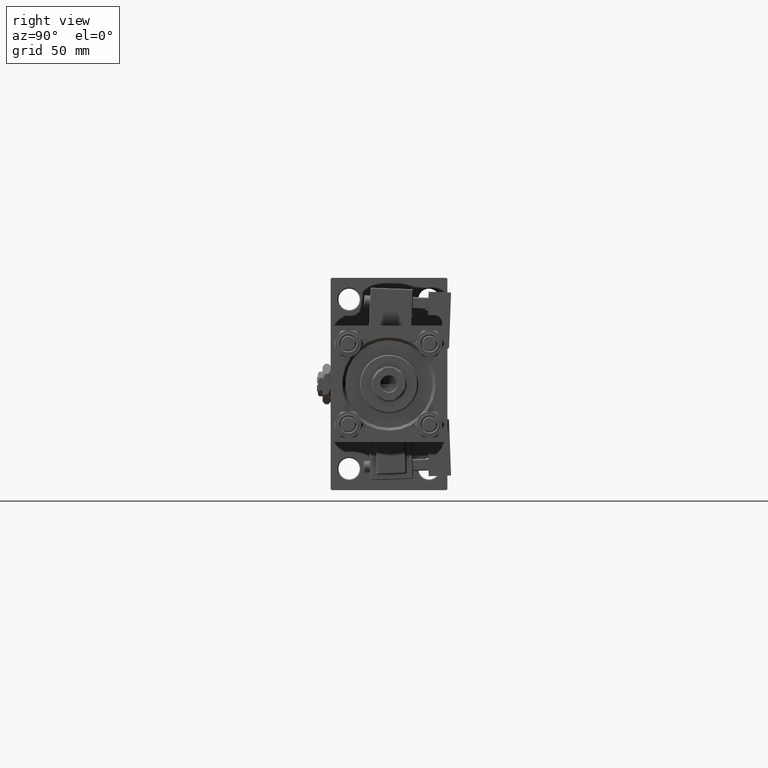
[diagram: clean part render]
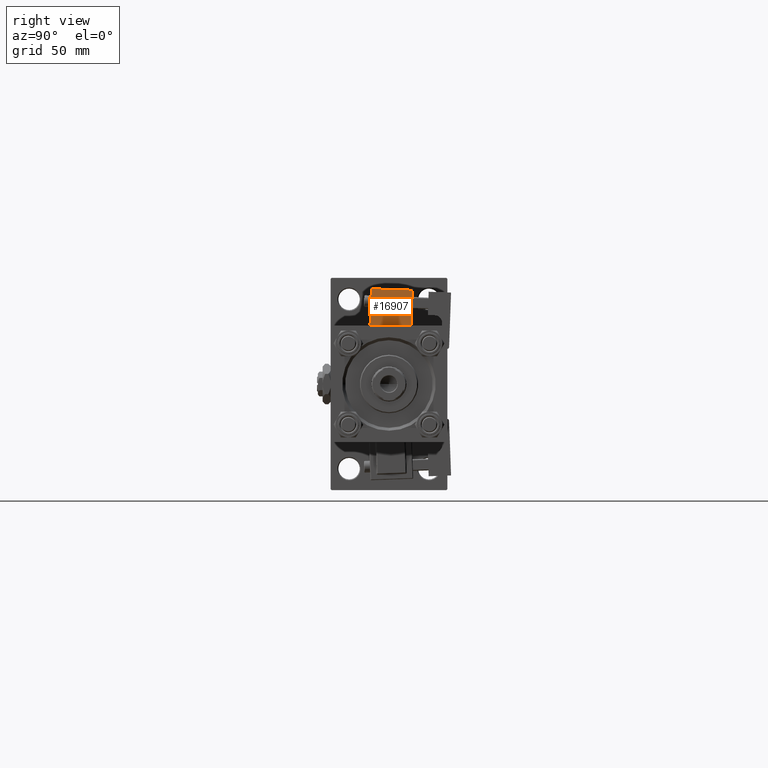
[diagram: same view with one face highlighted and labeled with its STEP entity id]
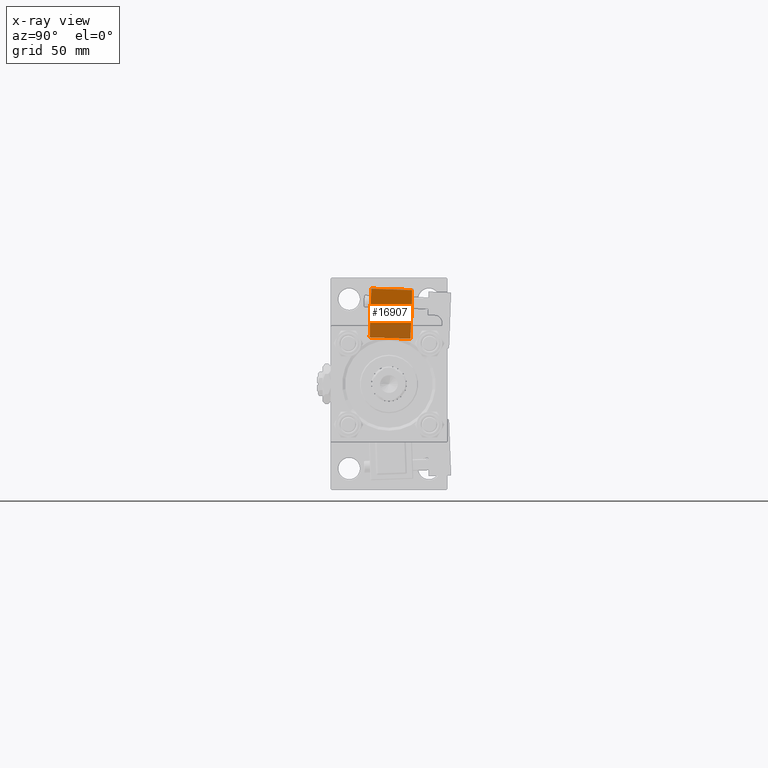
[diagram: x-ray of the same camera — body ghosted, the highlighted face saturated]
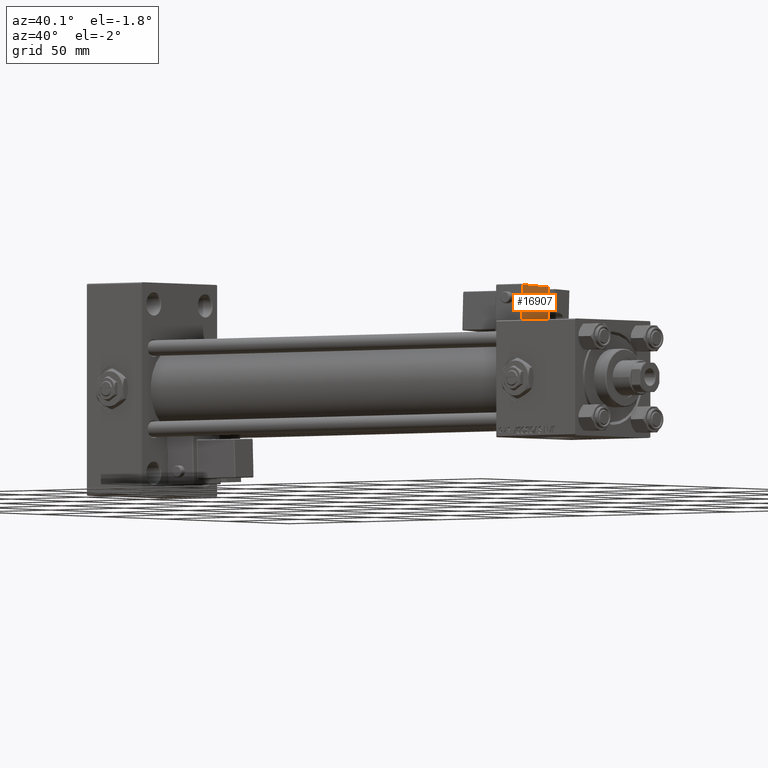
[diagram: same view with one face highlighted and labeled with its STEP entity id]
A machine part, right view. The second image highlights one B-rep face of the part: STEP entity #16907.
The next image is the same camera in x-ray: the body ghosted, the highlighted face saturated — about 26% of this face is hidden behind the body in this view.
A second angle (auxiliary view) of the same face is appended — the face is thin or edge-on in the first view.
In plain terms, the highlighted planar face has unit normal (-1, 0, 0).
Its self-contained STEP definition (entity closure, byte-faithful):
#5078 = EDGE_CURVE ( 'NONE', #16113, #12175, #16548, .T. ) ;
#5530 = EDGE_CURVE ( 'NONE', #12175, #8808, #18093, .T. ) ;
#8808 = VERTEX_POINT ( 'NONE', #38879 ) ;
#11890 = CARTESIAN_POINT ( 'NONE',  ( -8.750000000000003553, -14.24999999999999822, -1.000000000000000888 ) ) ;
#12175 = VERTEX_POINT ( 'NONE', #51238 ) ;
#13982 = CARTESIAN_POINT ( 'NONE',  ( -8.750000000000003553, -35.75000000000000000, -0.5000000000000004441 ) ) ;
#14751 = VERTEX_POINT ( 'NONE', #30065 ) ;
#16113 = VERTEX_POINT ( 'NONE', #25900 ) ;
#16548 = LINE ( 'NONE', #11890, #44857 ) ;
#16907 = ADVANCED_FACE ( 'NONE', ( #38532 ), #38794, .F. ) ;
#17034 = ORIENTED_EDGE ( 'NONE', *, *, #37834, .T. ) ;
#18093 = LINE ( 'NONE', #13982, #20402 ) ;
#20062 = ORIENTED_EDGE ( 'NONE', *, *, #5530, .T. ) ;
#20402 = VECTOR ( 'NONE', #30671, 1000.000000000000000 ) ;
#21513 = VECTOR ( 'NONE', #36344, 1000.000000000000000 ) ;
#22440 = ORIENTED_EDGE ( 'NONE', *, *, #23762, .T. ) ;
#23762 = EDGE_CURVE ( 'NONE', #14751, #16113, #31679, .T. ) ;
#25900 = CARTESIAN_POINT ( 'NONE',  ( -8.750000000000000000, -14.24999999999999822, 24.50000000000000000 ) ) ;
#27778 = DIRECTION ( 'NONE',  ( -1.334402673828313093E-16, 0.000000000000000000, -1.000000000000000000 ) ) ;
#30065 = CARTESIAN_POINT ( 'NONE',  ( -8.750000000000000000, -35.25000000000000000, 24.50000000000000000 ) ) ;
#30671 = DIRECTION ( 'NONE',  ( -0.000000000000000000, -1.000000000000000000, -0.000000000000000000 ) ) ;
#31679 = LINE ( 'NONE', #48434, #21513 ) ;
#32305 = ORIENTED_EDGE ( 'NONE', *, *, #5078, .T. ) ;
#32960 = DIRECTION ( 'NONE',  ( -1.334402673828313093E-16, 0.000000000000000000, -1.000000000000000000 ) ) ;
#35698 = AXIS2_PLACEMENT_3D ( 'NONE', #52238, #39881, #27778 ) ;
#36344 = DIRECTION ( 'NONE',  ( 0.000000000000000000, 1.000000000000000000, 0.000000000000000000 ) ) ;
#37834 = EDGE_CURVE ( 'NONE', #8808, #14751, #44620, .T. ) ;
#38532 = FACE_OUTER_BOUND ( 'NONE', #45961, .T. ) ;
#38794 = PLANE ( 'NONE',  #35698 ) ;
#38879 = CARTESIAN_POINT ( 'NONE',  ( -8.750000000000003553, -35.25000000000000000, -0.5000000000000001110 ) ) ;
#39881 = DIRECTION ( 'NONE',  ( 1.000000000000000000, 0.000000000000000000, -1.334402673828313093E-16 ) ) ;
#40509 = CARTESIAN_POINT ( 'NONE',  ( -8.750000000000000000, -35.25000000000000000, 25.00000000000000000 ) ) ;
#44620 = LINE ( 'NONE', #40509, #53673 ) ;
#44857 = VECTOR ( 'NONE', #32960, 1000.000000000000000 ) ;
#45961 = EDGE_LOOP ( 'NONE', ( #17034, #22440, #32305, #20062 ) ) ;
#48434 = CARTESIAN_POINT ( 'NONE',  ( -8.750000000000000000, -35.75000000000000000, 24.50000000000000000 ) ) ;
#51238 = CARTESIAN_POINT ( 'NONE',  ( -8.750000000000003553, -14.24999999999999822, -0.5000000000000001110 ) ) ;
#52238 = CARTESIAN_POINT ( 'NONE',  ( -8.750000000000000000, -35.75000000000000000, 25.00000000000000000 ) ) ;
#53140 = DIRECTION ( 'NONE',  ( 1.334402673828313093E-16, -0.000000000000000000, 1.000000000000000000 ) ) ;
#53673 = VECTOR ( 'NONE', #53140, 1000.000000000000000 ) ;